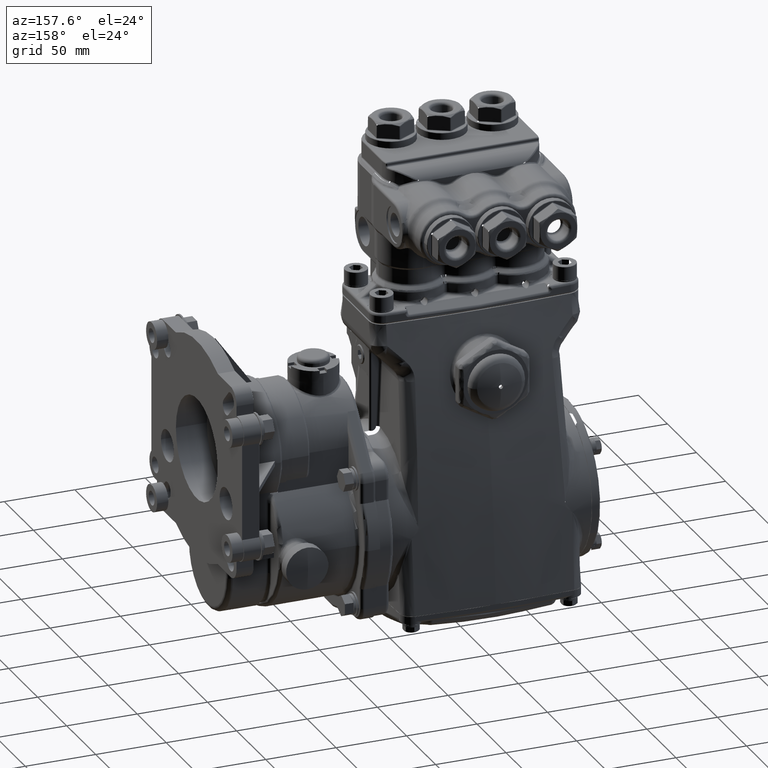
[diagram: clean part render]
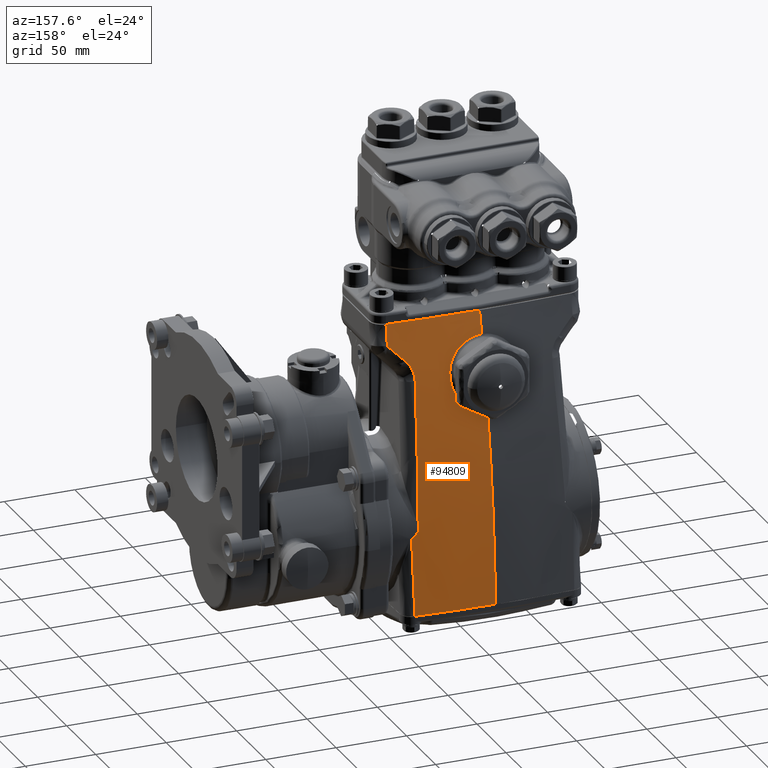
[diagram: same view with one face highlighted and labeled with its STEP entity id]
A machine part, auxiliary view. The second image highlights one B-rep face of the part: STEP entity #94809.
In plain terms, the highlighted face is a freeform B-spline surface patch.
Its self-contained STEP definition (entity closure, byte-faithful):
#322 = CARTESIAN_POINT ( 'NONE',  ( 1.464488406949919552, 1.274012937168632842, 5.708661417322844933 ) ) ;
#412 = CARTESIAN_POINT ( 'NONE',  ( 1.913792689305000794, 1.578652126433170100, 4.124995731966824231 ) ) ;
#863 = ORIENTED_EDGE ( 'NONE', *, *, #111050, .T. ) ;
#933 = CARTESIAN_POINT ( 'NONE',  ( 2.913385826771653697, 2.265344068576853775, -2.165354330708661568 ) ) ;
#1340 = CARTESIAN_POINT ( 'NONE',  ( 2.578671170726355211, 1.335102641929536871, 5.127045243281220799 ) ) ;
#1550 = CARTESIAN_POINT ( 'NONE',  ( 2.832087334218518215, 1.704813401921131399, 3.127925920230778090 ) ) ;
#1611 = CARTESIAN_POINT ( 'NONE',  ( 0.9599596636209281053, 1.609408501972310557, 4.246538372213343848 ) ) ;
#2029 = EDGE_CURVE ( 'NONE', #50532, #35107, #77301, .T. ) ;
#2163 = CARTESIAN_POINT ( 'NONE',  ( 2.913385809642305091, 1.691985680221154587, 3.127925920230778090 ) ) ;
#2215 = CARTESIAN_POINT ( 'NONE',  ( 0.9064667844229425953, 1.701914183292754457, 3.782771815187817133 ) ) ;
#2455 = B_SPLINE_CURVE_WITH_KNOTS ( 'NONE', 3,
 ( #120571, #9150, #6741, #44455, #45066, #121175, #73543, #102606, #82258, #64257, #36400, #121788, #37011, #54334 ),
 .UNSPECIFIED., .F., .F.,
 ( 4, 2, 2, 2, 2, 2, 4 ),
 ( 0.000000000000000000, 0.002006917460411369609, 0.004013834920822739218, 0.008027669841645473231, 0.01003458730205684241, 0.01204150476246821158, 0.01605533968329095340 ),
 .UNSPECIFIED. ) ;
#2597 = CARTESIAN_POINT ( 'NONE',  ( -3.553331779381568324E-16, 2.401107312964255058, -2.153091527327260835 ) ) ;
#2777 = CARTESIAN_POINT ( 'NONE',  ( -0.4944103712627415104, 1.296520347643933091, 5.708661417322852039 ) ) ;
#2831 = CARTESIAN_POINT ( 'NONE',  ( 0.9674257110944358695, 1.631065580829811790, 4.136350087504880868 ) ) ;
#2890 = CARTESIAN_POINT ( 'NONE',  ( -7.629761195857950561E-17, 1.982659120498347916, 2.275230264263858437 ) ) ;
#3082 = CARTESIAN_POINT ( 'NONE',  ( 2.044355463987427957, 2.128279285250508579, 0.2680828113186349282 ) ) ;
#3389 = CARTESIAN_POINT ( 'NONE',  ( -0.7927816049644650365, 1.913850617605289184, 3.127925920230762991 ) ) ;
#3448 = CARTESIAN_POINT ( 'NONE',  ( 0.7319415609452402105, 1.510511002020255455, 4.756252534259798104 ) ) ;
#3991 = CARTESIAN_POINT ( 'NONE',  ( -2.913385826771654141, 2.265344068576858216, -2.165354330708661568 ) ) ;
#4600 = CARTESIAN_POINT ( 'NONE',  ( -2.369125755900576280, 1.232386614232151567, 5.708661417322828946 ) ) ;
#4714 = CARTESIAN_POINT ( 'NONE',  ( 2.141518609228190151, 2.142761626880099968, 0.03843709217641189113 ) ) ;
#5770 = B_SPLINE_CURVE_WITH_KNOTS ( 'NONE', 3,
 ( #89769, #60041, #81131, #22942 ),
 .UNSPECIFIED., .F., .F.,
 ( 4, 4 ),
 ( 0.05720529367331355503, 0.5000000000000000000 ),
 .UNSPECIFIED. ) ;
#6497 = CARTESIAN_POINT ( 'NONE',  ( 0.06446866798773855101, 1.445856567849097329, 5.088089217278126242 ) ) ;
#6526 = B_SPLINE_CURVE_WITH_KNOTS ( 'NONE', 3,
 ( #114601, #49581, #56431, #87362, #65736, #2597 ),
 .UNSPECIFIED., .F., .F.,
 ( 4, 2, 4 ),
 ( 2.221529986854170653E-16, 0.02830497638067615285, 0.05660995276135206977 ),
 .UNSPECIFIED. ) ;
#6741 = CARTESIAN_POINT ( 'NONE',  ( 2.096129776760800034, 1.465843969454385665, 4.644982890269670150 ) ) ;
#7107 = CARTESIAN_POINT ( 'NONE',  ( 4.913136071072523174E-16, 1.836057301759951743, 3.153322082173252383 ) ) ;
#7356 = CARTESIAN_POINT ( 'NONE',  ( 1.694981807724714296, 1.848142482010741716, 3.127925920230768320 ) ) ;
#7824 = VERTEX_POINT ( 'NONE', #120500 ) ;
#8536 = CARTESIAN_POINT ( 'NONE',  ( 2.239546380805879977, 2.213566551445497410, -0.7448622437288106024 ) ) ;
#9150 = CARTESIAN_POINT ( 'NONE',  ( 2.113476934372326976, 1.460827687103822159, 4.664159022983963787 ) ) ;
#9591 = CARTESIAN_POINT ( 'NONE',  ( 1.345329668388619115, 2.372960332906649317, -2.165354330708661568 ) ) ;
#10184 = CARTESIAN_POINT ( 'NONE',  ( -0.1019934165441797186, 2.300768595909193692, 0.4897784465330312087 ) ) ;
#10244 = CARTESIAN_POINT ( 'NONE',  ( 0.5160278655444363594, 1.474502422586199124, 4.941722194200434792 ) ) ;
#10798 = CARTESIAN_POINT ( 'NONE',  ( 1.091501189288772045, 2.263308735351807321, 0.4897784465330322634 ) ) ;
#10863 = CARTESIAN_POINT ( 'NONE',  ( 0.06459929520378436540, 1.836057302116698597, 3.153322082174858654 ) ) ;
#11414 = CARTESIAN_POINT ( 'NONE',  ( 1.943646624093668951, 1.254362676313996783, 5.708661417322836940 ) ) ;
#11471 = CARTESIAN_POINT ( 'NONE',  ( 0.3149968055351913820, 1.824372806192153140, 3.205623488492979067 ) ) ;
#12017 = CARTESIAN_POINT ( 'NONE',  ( -1.566192897389171446, 1.270407001257443991, 5.708661417322867138 ) ) ;
#12070 = CARTESIAN_POINT ( 'NONE',  ( 0.8416776436527466654, 1.731100539559013995, 3.640799853198356306 ) ) ;
#12218 = CARTESIAN_POINT ( 'NONE',  ( 2.032358843832673845, 2.056376370780970575, 0.9443930657390869898 ) ) ;
#12341 = CARTESIAN_POINT ( 'NONE',  ( 2.580420361868525525, 1.219814423293576366, 5.708661417322829834 ) ) ;
#12633 = CARTESIAN_POINT ( 'NONE',  ( -0.2418360551790639246, 1.930064199602339103, 3.127925920230777201 ) ) ;
#12688 = CARTESIAN_POINT ( 'NONE',  ( 0.9348349137624545335, 1.683629070884896439, 3.872875714643418732 ) ) ;
#12746 = CARTESIAN_POINT ( 'NONE',  ( -9.459155955198532228E-16, 2.302870744067759379, -0.3757870823018082396 ) ) ;
#13186 = VERTEX_POINT ( 'NONE', #24187 ) ;
#13254 = CARTESIAN_POINT ( 'NONE',  ( -2.441314665332591005, 2.306279735125305486, -2.165354330708661568 ) ) ;
#13862 = CARTESIAN_POINT ( 'NONE',  ( -1.915486056463422626, 2.186527716124472054, 0.4897784465330268233 ) ) ;
#14475 = CARTESIAN_POINT ( 'NONE',  ( -2.283695148368128258, 2.140796000541696831, 0.4897784465330257131 ) ) ;
#15150 = CARTESIAN_POINT ( 'NONE',  ( 0.04032141249026682805, 1.445619475605324666, 5.089296836793729462 ) ) ;
#16630 = CARTESIAN_POINT ( 'NONE',  ( 0.4014957656440674150, 1.927885586440226895, 3.127925920230758550 ) ) ;
#18525 = CARTESIAN_POINT ( 'NONE',  ( 2.050696319507217424, 2.124840656513260484, 0.2941673272930121485 ) ) ;
#18893 = CARTESIAN_POINT ( 'NONE',  ( 1.989399371181384657, 2.338284998638617829, -2.165354330708661568 ) ) ;
#19126 = CARTESIAN_POINT ( 'NONE',  ( 2.053194142686559864, 2.123507996596452063, 0.3041950259637326570 ) ) ;
#19497 = CARTESIAN_POINT ( 'NONE',  ( 0.1450234440065842623, 2.300768595909193692, 0.4897784465330312087 ) ) ;
#20101 = CARTESIAN_POINT ( 'NONE',  ( 2.324091733874594556, 1.235065584125860205, 5.708661417322837828 ) ) ;
#20160 = CARTESIAN_POINT ( 'NONE',  ( 0.4326564059834072107, 1.465345589794402992, 4.988646893029093476 ) ) ;
#20717 = CARTESIAN_POINT ( 'NONE',  ( 2.822533585408712575, 2.063108027997046179, 0.4897784465330322634 ) ) ;
#20772 = CARTESIAN_POINT ( 'NONE',  ( 0.1605620357445411150, 1.447988655397608904, 5.077233423560211456 ) ) ;
#21320 = CARTESIAN_POINT ( 'NONE',  ( -0.4873200862093256536, 1.924545779200155238, 3.127925920230781642 ) ) ;
#21333 = EDGE_CURVE ( 'NONE', #41950, #33433, #65737, .T. ) ;
#21376 = CARTESIAN_POINT ( 'NONE',  ( 0.6887007126048577677, 1.773395714737923345, 3.439881183082051042 ) ) ;
#21924 = CARTESIAN_POINT ( 'NONE',  ( -2.476352911878936691, 2.114609130722263863, 0.4897784465330257131 ) ) ;
#21977 = CARTESIAN_POINT ( 'NONE',  ( 0.9672713820068505886, 1.646538536074291237, 4.058006522140317429 ) ) ;
#22360 = CARTESIAN_POINT ( 'NONE',  ( 2.580420361868525525, 1.219814423293576366, 5.708661417322829834 ) ) ;
#22530 = CARTESIAN_POINT ( 'NONE',  ( -0.7760523888099779555, 2.282663781206291986, 0.4897784465330268233 ) ) ;
#22942 = CARTESIAN_POINT ( 'NONE',  ( 3.450959980213676461E-17, 1.299212598425197429, 5.708661417322835163 ) ) ;
#23137 = CARTESIAN_POINT ( 'NONE',  ( -1.742463560137298861, 1.843263351871661682, 3.127925920230766099 ) ) ;
#23750 = CARTESIAN_POINT ( 'NONE',  ( -2.862114397419967649, 1.201536995417321174, 5.708661417322835163 ) ) ;
#23861 = CARTESIAN_POINT ( 'NONE',  ( 2.244154975526539531, 2.140548279587432656, -0.04263853052005076028 ) ) ;
#24187 = CARTESIAN_POINT ( 'NONE',  ( -3.553331779381568324E-16, 2.401107312964255058, -2.153091527327260835 ) ) ;
#25691 = EDGE_CURVE ( 'NONE', #122255, #7824, #5770, .T. ) ;
#25872 = CARTESIAN_POINT ( 'NONE',  ( 1.424768798695146943, 1.872199753906897080, 3.127925920230782530 ) ) ;
#26296 = CARTESIAN_POINT ( 'NONE',  ( 2.043608718765491439, 2.136991848240977987, 0.1870679647836691606 ) ) ;
#28046 = EDGE_CURVE ( 'NONE', #80290, #62880, #82177, .T. ) ;
#28146 = CARTESIAN_POINT ( 'NONE',  ( 4.460639497433702925E-07, 1.299212598425199872, 5.708661417322837828 ) ) ;
#28731 = ORIENTED_EDGE ( 'NONE', *, *, #25691, .F. ) ;
#28767 = CARTESIAN_POINT ( 'NONE',  ( 1.062078202322146669, 2.384053432892066837, -2.165354330708661568 ) ) ;
#29368 = CARTESIAN_POINT ( 'NONE',  ( 0.7686644455069947535, 2.282642455870151466, 0.4897784465330279335 ) ) ;
#29425 = CARTESIAN_POINT ( 'NONE',  ( 0.8703003494871583978, 1.551087081194280737, 4.546494005402069050 ) ) ;
#29840 = EDGE_CURVE ( 'NONE', #62880, #13186, #6526, .T. ) ;
#29969 = CARTESIAN_POINT ( 'NONE',  ( 0.8019535934125048282, 1.292120820694525829, 5.708661417322820952 ) ) ;
#30026 = CARTESIAN_POINT ( 'NONE',  ( 0.8248358664637551740, 1.535056502061034278, 4.629367722570785659 ) ) ;
#30639 = CARTESIAN_POINT ( 'NONE',  ( 0.08054166425364044091, 1.446093476583459880, 5.086882738810285964 ) ) ;
#31182 = CARTESIAN_POINT ( 'NONE',  ( -2.240980235268052567, 2.321187910974375601, -2.165354330708661568 ) ) ;
#31778 = CARTESIAN_POINT ( 'NONE',  ( -2.841633460699813707, 2.272069094341538253, -2.165354330708661568 ) ) ;
#31834 = CARTESIAN_POINT ( 'NONE',  ( 0.3449787976630937503, 1.821950353961406366, 3.216540131001420111 ) ) ;
#32225 = CARTESIAN_POINT ( 'NONE',  ( 2.586362804630043755, 1.329823753665074770, 5.151270064738946886 ) ) ;
#32396 = CARTESIAN_POINT ( 'NONE',  ( -2.913385628152182161, 2.048762232609131040, 0.4897784465330273784 ) ) ;
#32440 = ORIENTED_EDGE ( 'NONE', *, *, #112782, .T. ) ;
#33014 = CARTESIAN_POINT ( 'NONE',  ( -1.192739666030848023, 1.282981708238517982, 5.708661417322778320 ) ) ;
#33123 = CARTESIAN_POINT ( 'NONE',  ( 2.053717711146651581, 2.139269078108408273, 0.1560372837815818814 ) ) ;
#33433 = VERTEX_POINT ( 'NONE', #77148 ) ;
#33459 = CARTESIAN_POINT ( 'NONE',  ( -1.384850827037492099E-08, 1.349635227852899577, 5.502833657239617260 ) ) ;
#33742 = CARTESIAN_POINT ( 'NONE',  ( 2.190893994370609388, 2.142160377084879386, -0.004468358595172817679 ) ) ;
#34077 = CARTESIAN_POINT ( 'NONE',  ( 2.584535606851970257, 1.294080410689277816, 5.337251396087705935 ) ) ;
#34364 = CARTESIAN_POINT ( 'NONE',  ( 2.086663981160560066, 2.141946370163338997, 0.09931180522621346762 ) ) ;
#35107 = VERTEX_POINT ( 'NONE', #82582 ) ;
#35783 = CARTESIAN_POINT ( 'NONE',  ( 0.1449928827331220804, 1.931427949591510762, 3.127925920230771872 ) ) ;
#36400 = CARTESIAN_POINT ( 'NONE',  ( 1.927611122228684026, 1.544016712790778012, 4.303500443620480453 ) ) ;
#37011 = CARTESIAN_POINT ( 'NONE',  ( 1.911712936028525656, 1.569139206086894722, 4.176878153945166261 ) ) ;
#38058 = CARTESIAN_POINT ( 'NONE',  ( 1.648668314213691533, 2.215500870424783830, 0.4897784465330284331 ) ) ;
#38672 = CARTESIAN_POINT ( 'NONE',  ( 2.414281635307358176, 2.308400903803341286, -2.165354330708661568 ) ) ;
#38730 = CARTESIAN_POINT ( 'NONE',  ( 0.6422591814072780014, 1.782550782372619880, 3.397208525460233997 ) ) ;
#39264 = CARTESIAN_POINT ( 'NONE',  ( 2.663295530942336509, 2.288034568519320633, -2.165354330708661568 ) ) ;
#39287 = CARTESIAN_POINT ( 'NONE',  ( -1.274984242628392523E-15, 1.445461229294053629, 5.090103064882366191 ) ) ;
#39325 = CARTESIAN_POINT ( 'NONE',  ( 0.9195789750301700538, 1.573690374301592643, 4.429810660793449095 ) ) ;
#39932 = CARTESIAN_POINT ( 'NONE',  ( 0.4328265377979011452, 1.813782680613042153, 3.253492456797081989 ) ) ;
#40280 = CARTESIAN_POINT ( 'NONE',  ( 2.581547405182520460, 1.334037875565112996, 5.131388924344277847 ) ) ;
#40498 = CARTESIAN_POINT ( 'NONE',  ( -1.161614335099249162, 1.892574789840504090, 3.127925920230731460 ) ) ;
#40553 = CARTESIAN_POINT ( 'NONE',  ( 0.9554301720631647177, 1.603327808052289916, 4.277628539086538950 ) ) ;
#41088 = CARTESIAN_POINT ( 'NONE',  ( -2.686370785910835668, 2.084068835673689168, 0.4897784465330284331 ) ) ;
#41146 = CARTESIAN_POINT ( 'NONE',  ( 0.7107172724088213212, 1.505913706992816570, 4.779993862681470418 ) ) ;
#41204 = CARTESIAN_POINT ( 'NONE',  ( 4.913136071072523174E-16, 1.836057301759951743, 3.153322082173252383 ) ) ;
#41289 = CARTESIAN_POINT ( 'NONE',  ( 1.939169078520298184, 1.694725303002851957, 3.491945384865736912 ) ) ;
#41482 = CARTESIAN_POINT ( 'NONE',  ( 2.586362804630043755, 1.329823753665074770, 5.151270064738946886 ) ) ;
#41693 = CARTESIAN_POINT ( 'NONE',  ( -0.4802293617885408095, 2.293642939336617115, 0.4897784465330360937 ) ) ;
#41950 = VERTEX_POINT ( 'NONE', #412 ) ;
#42300 = CARTESIAN_POINT ( 'NONE',  ( -2.913385826771653697, 1.197969208711458622, 5.708661417322836940 ) ) ;
#44003 = VERTEX_POINT ( 'NONE', #56384 ) ;
#44455 = CARTESIAN_POINT ( 'NONE',  ( 2.063488888649752884, 1.476050141854796438, 4.604872648964010828 ) ) ;
#45063 = CARTESIAN_POINT ( 'NONE',  ( 2.841641326625984565, 1.202961639721772835, 5.708661417322836940 ) ) ;
#45066 = CARTESIAN_POINT ( 'NONE',  ( 2.048227176215684064, 1.481234032319028504, 4.583956750178723283 ) ) ;
#45942 = CARTESIAN_POINT ( 'NONE',  ( 2.574974328991057604, 1.336104400314134022, 5.123366273300666407 ) ) ;
#47315 = CARTESIAN_POINT ( 'NONE',  ( 2.706392384829025666, 1.723957603235178659, 3.127925920230774093 ) ) ;
#47981 = CARTESIAN_POINT ( 'NONE',  ( 0.2533926817482556326, 1.828505556673673649, 3.187054628844160131 ) ) ;
#48165 = CARTESIAN_POINT ( 'NONE',  ( 2.044355463987427957, 2.128279285250508579, 0.2680828113186349282 ) ) ;
#48544 = CARTESIAN_POINT ( 'NONE',  ( 0.7520193225572913143, 2.393118508680718737, -2.165354330708661568 ) ) ;
#48605 = CARTESIAN_POINT ( 'NONE',  ( 0.8708494686695564813, 1.719662461424737776, 3.696078290583389325 ) ) ;
#49147 = CARTESIAN_POINT ( 'NONE',  ( 2.189576524486965603, 2.325080261920541513, -2.165354330708661568 ) ) ;
#49201 = CARTESIAN_POINT ( 'NONE',  ( 0.1286849885896270695, 1.447041223724454317, 5.082056845242140852 ) ) ;
#49581 = CARTESIAN_POINT ( 'NONE',  ( 1.856596089375251113, 2.347836400576193139, -2.152851640792331267 ) ) ;
#49745 = CARTESIAN_POINT ( 'NONE',  ( -0.1019499836553652977, 1.299212598425203424, 5.708661417322837828 ) ) ;
#49802 = CARTESIAN_POINT ( 'NONE',  ( 0.9458950846975648918, 1.674355009619318047, 3.918891003596449263 ) ) ;
#50361 = CARTESIAN_POINT ( 'NONE',  ( -2.664582750533174949, 2.288033759751162410, -2.165354330708661568 ) ) ;
#50418 = CARTESIAN_POINT ( 'NONE',  ( 0.9644831214159413912, 1.618667759299428965, 4.199342229287558403 ) ) ;
#50532 = VERTEX_POINT ( 'NONE', #66638 ) ;
#50559 = CARTESIAN_POINT ( 'NONE',  ( 1.963626619177751165, 1.797341108968452561, 2.856902942451461147 ) ) ;
#50681 = EDGE_CURVE ( 'NONE', #94563, #80290, #62848, .T. ) ;
#50968 = CARTESIAN_POINT ( 'NONE',  ( -1.130488594888032106, 2.260970933480409784, 0.4897784465330104475 ) ) ;
#51572 = CARTESIAN_POINT ( 'NONE',  ( -1.523571933390364785, 1.864023738764600591, 3.127925920230789192 ) ) ;
#51630 = CARTESIAN_POINT ( 'NONE',  ( -1.274984242628392523E-15, 1.445461229294053629, 5.090103064882366191 ) ) ;
#51874 = ORIENTED_EDGE ( 'NONE', *, *, #87277, .T. ) ;
#52159 = B_SPLINE_CURVE_WITH_KNOTS ( 'NONE', 3,
 ( #19126, #67983, #122452, #58656, #103275, #18525, #57424, #84743, #66154, #48165 ),
 .UNSPECIFIED., .F., .F.,
 ( 4, 3, 3, 4 ),
 ( -5.562569102119109104E-05, 0.000000000000000000, 0.0003135512665637998626, 0.0008964518825718768413 ),
 .UNSPECIFIED. ) ;
#52186 = CARTESIAN_POINT ( 'NONE',  ( -2.326410604817633843, 1.776570720899578237, 3.127925920230762991 ) ) ;
#54330 = CARTESIAN_POINT ( 'NONE',  ( 0.4056649939589584419, 1.297898323476693649, 5.708661417322814735 ) ) ;
#54334 = CARTESIAN_POINT ( 'NONE',  ( 1.913792689305000794, 1.578652126433170100, 4.124995731966824231 ) ) ;
#55214 = CARTESIAN_POINT ( 'NONE',  ( 2.279618857958573219, 1.416278901517128430, 4.829451229673167312 ) ) ;
#56202 = VERTEX_POINT ( 'NONE', #7107 ) ;
#56384 = CARTESIAN_POINT ( 'NONE',  ( 2.586362804630043755, 1.329823753665074770, 5.151270064738946886 ) ) ;
#56431 = CARTESIAN_POINT ( 'NONE',  ( 1.485659127593187856, 2.367827536078679795, -2.152937399985699773 ) ) ;
#56601 = CARTESIAN_POINT ( 'NONE',  ( 2.132997294791504572, 1.245100427256950137, 5.708661417322847598 ) ) ;
#56890 = B_SPLINE_SURFACE_WITH_KNOTS ( 'NONE', 3, 3, ( 
 ( #933, #86924, #2163, #105481 ),
 ( #94363, #20717, #1550, #45063 ),
 ( #39264, #114159, #47315, #67752 ),
 ( #38672, #95575, #58418, #66530 ),
 ( #49147, #82862, #76424, #20101 ),
 ( #18893, #77028, #110664, #56601 ),
 ( #75820, #96191, #104868, #11414 ),
 ( #114772, #38058, #7356, #72934 ),
 ( #9591, #113556, #25872, #322 ),
 ( #28767, #10798, #120569, #104249 ),
 ( #48544, #29368, #67132, #29969 ),
 ( #63630, #101382, #16630, #54330 ),
 ( #92129, #19497, #35783, #73538 ),
 ( #57199, #65910, #111267, #28146 ),
 ( #103645, #10184, #85698, #49745 ),
 ( #99236, #116580, #12633, #59028 ),
 ( #88160, #41693, #21320, #2777 ),
 ( #115985, #22530, #3389, #96796 ),
 ( #68960, #50968, #40498, #33014 ),
 ( #87543, #60249, #51572, #12017 ),
 ( #60860, #98026, #23137, #117194 ),
 ( #108514, #13862, #89358, #61463 ),
 ( #106686, #107906, #79491, #78277 ),
 ( #31182, #14475, #52186, #4600 ),
 ( #13254, #21924, #59633, #97412 ),
 ( #50361, #41088, #88757, #78882 ),
 ( #31778, #69560, #107292, #23750 ),
 ( #3991, #32396, #98633, #42300 ) ),
 .UNSPECIFIED., .F., .F., .F.,
 ( 4, 1, 1, 1, 1, 1, 1, 1, 1, 1, 1, 3, 1, 1, 1, 1, 1, 1, 1, 1, 1, 1, 1, 4 ),
 ( 4, 4 ),
 ( 0.6820721574386665598, 0.6959246563835279620, 0.7035427212275893183, 0.7193976784518302248, 0.7310405802590583813, 0.7359332488469740863, 0.7508238822397268475, 0.7638475608825302521, 0.7796596398469348710, 0.7995163485322880348, 0.8173264764016470174, 0.8410360787193331689, 0.8577107850873244566, 0.8637457220820379256, 0.8805901526646464639, 0.9065920388027239873, 0.9224714650153007511, 0.9387315542144891722, 0.9421836685404010314, 0.9588536976265762402, 0.9664841599499356395, 0.9748837514135768600, 0.9901004416486960391, 1.000000000000000000 ),
 ( 0.000000000000000000, 1.000000000000000000 ),
 .UNSPECIFIED. ) ;
#57199 = CARTESIAN_POINT ( 'NONE',  ( -7.936972221735040067E-07, 2.401574803149599369, -2.165354330708661568 ) ) ;
#57257 = CARTESIAN_POINT ( 'NONE',  ( 0.6433779996093790254, 1.492703628457151543, 4.848150405952389441 ) ) ;
#57424 = CARTESIAN_POINT ( 'NONE',  ( 2.049718606573461166, 2.125365367588376575, 0.2902049147125475015 ) ) ;
#57862 = CARTESIAN_POINT ( 'NONE',  ( 0.5548157912006927983, 1.797392117569904579, 3.328526122958148203 ) ) ;
#58385 = ORIENTED_EDGE ( 'NONE', *, *, #2029, .T. ) ;
#58418 = CARTESIAN_POINT ( 'NONE',  ( 2.487087237515690497, 1.755350102494653619, 3.127925920230767431 ) ) ;
#58481 = CARTESIAN_POINT ( 'NONE',  ( 0.2066455304282950045, 1.831067194595412451, 3.175578635901488589 ) ) ;
#58656 = CARTESIAN_POINT ( 'NONE',  ( 2.052668002272747927, 2.123788338986134505, 0.3020877454172159471 ) ) ;
#59028 = CARTESIAN_POINT ( 'NONE',  ( -0.2434275427088355148, 1.298707510032789170, 5.708661417322846710 ) ) ;
#59083 = CARTESIAN_POINT ( 'NONE',  ( 0.9306256475736158773, 1.686722155919021970, 3.857577703846204020 ) ) ;
#59633 = CARTESIAN_POINT ( 'NONE',  ( -2.511391663655022644, 1.752002329188374841, 3.127925920230763879 ) ) ;
#59691 = CARTESIAN_POINT ( 'NONE',  ( 0.5678631274822998343, 1.795369591084004179, 3.337844157325742689 ) ) ;
#59751 = CARTESIAN_POINT ( 'NONE',  ( -4.466146051079346438E-16, 1.913088131938618153, 2.714857836103527600 ) ) ;
#60041 = CARTESIAN_POINT ( 'NONE',  ( 1.721199833086535458, 1.272744808180553022, 5.708661417322835163 ) ) ;
#60249 = CARTESIAN_POINT ( 'NONE',  ( -1.480950586178896522, 2.231805334558643494, 0.4897784465330393688 ) ) ;
#60362 = CARTESIAN_POINT ( 'NONE',  ( -3.553331779381568324E-16, 2.401107312964255058, -2.153091527327260835 ) ) ;
#60860 = CARTESIAN_POINT ( 'NONE',  ( -1.648708095812247088, 2.358238290425401562, -2.165354330708661568 ) ) ;
#60970 = CARTESIAN_POINT ( 'NONE',  ( -9.400979228033020406E-16, 2.161540637553380773, 0.9516246190699118035 ) ) ;
#61463 = CARTESIAN_POINT ( 'NONE',  ( -2.012704400865588106, 1.251118121441604725, 5.708661417322830722 ) ) ;
#62130 = CARTESIAN_POINT ( 'NONE',  ( 2.227242516835840735, 2.321209563805544995, -2.152759186897168053 ) ) ;
#62848 = B_SPLINE_CURVE_WITH_KNOTS ( 'NONE', 3,
 ( #81451, #73348, #117919, #111077, #26296, #33123, #70898, #82065, #34364, #101811, #89474, #4714, #108624, #33742, #119779, #23861 ),
 .UNSPECIFIED., .F., .F.,
 ( 4, 2, 2, 2, 2, 2, 2, 4 ),
 ( 0.000000000000000000, 0.001262479239838071874, 0.002524958479676143747, 0.003787437719514216272, 0.005049916959352287495, 0.006312396199190359151, 0.007574875439028429941, 0.01009983391870457325 ),
 .UNSPECIFIED. ) ;
#62880 = VERTEX_POINT ( 'NONE', #62130 ) ;
#63630 = CARTESIAN_POINT ( 'NONE',  ( 0.3931574066697886560, 2.399831511276485863, -2.165354330708661568 ) ) ;
#64086 = ORIENTED_EDGE ( 'NONE', *, *, #21333, .T. ) ;
#64257 = CARTESIAN_POINT ( 'NONE',  ( 1.933107383546204483, 1.538854528032834734, 4.328488172486087748 ) ) ;
#64857 = CARTESIAN_POINT ( 'NONE',  ( 2.244154975526539531, 2.140548279587432656, -0.04263853052005076028 ) ) ;
#65737 = B_SPLINE_CURVE_WITH_KNOTS ( 'NONE', 3,
 ( #85290, #41289, #50559, #79078, #12218, #88345 ),
 .UNSPECIFIED., .F., .F.,
 ( 4, 2, 4 ),
 ( 0.000000000000000000, 0.04904723555558240800, 0.09809447111116481599 ),
 .UNSPECIFIED. ) ;
#65736 = CARTESIAN_POINT ( 'NONE',  ( 0.3716019788068586904, 2.401107303656055958, -2.153091527322793741 ) ) ;
#65910 = CARTESIAN_POINT ( 'NONE',  ( 1.163670133464663677E-17, 2.300768595909193692, 0.4897784465330312087 ) ) ;
#66154 = CARTESIAN_POINT ( 'NONE',  ( 2.046101504699350926, 2.127312986832227804, 0.2754674812947199292 ) ) ;
#66530 = CARTESIAN_POINT ( 'NONE',  ( 2.523490070267365493, 1.223445930611731125, 5.708661417322820064 ) ) ;
#66638 = CARTESIAN_POINT ( 'NONE',  ( 2.574974328991057604, 1.336104400314134022, 5.123366273300666407 ) ) ;
#67028 = ORIENTED_EDGE ( 'NONE', *, *, #29840, .T. ) ;
#67132 = CARTESIAN_POINT ( 'NONE',  ( 0.7853088048963535739, 1.913828282296075267, 3.127925920230765211 ) ) ;
#67190 = CARTESIAN_POINT ( 'NONE',  ( 0.7716760308857149031, 1.520005616499535916, 4.707190689330426281 ) ) ;
#67752 = CARTESIAN_POINT ( 'NONE',  ( 2.727940840439588843, 1.210589729325569186, 5.708661417322829834 ) ) ;
#67806 = CARTESIAN_POINT ( 'NONE',  ( 0.2222672595200096968, 1.830271744323471506, 3.179138551028549919 ) ) ;
#67961 = EDGE_LOOP ( 'NONE', ( #79564, #67028, #51874, #79011, #32440, #28731, #71794, #863, #58385, #76065, #64086, #74551, #84124 ) ) ;
#67983 = CARTESIAN_POINT ( 'NONE',  ( 2.053018764334046509, 2.123601462032815412, 0.3034926010330931678 ) ) ;
#68418 = CARTESIAN_POINT ( 'NONE',  ( 0.7307716510373687413, 1.763420215501402266, 3.486847099895348912 ) ) ;
#68960 = CARTESIAN_POINT ( 'NONE',  ( -1.099363582922386673, 2.382977130700372648, -2.165354330708661568 ) ) ;
#69013 = CARTESIAN_POINT ( 'NONE',  ( 0.1282450143015186061, 1.834608345002695318, 3.159747366912883049 ) ) ;
#69560 = CARTESIAN_POINT ( 'NONE',  ( -2.848460234453425777, 2.059014184365152378, 0.4897784465330273784 ) ) ;
#69617 = CARTESIAN_POINT ( 'NONE',  ( 0.8837879089344029548, 1.556684492105498752, 4.517574585329223957 ) ) ;
#70898 = CARTESIAN_POINT ( 'NONE',  ( 2.060662642086689811, 2.140149228468939402, 0.1411380803277876572 ) ) ;
#71227 = CARTESIAN_POINT ( 'NONE',  ( 3.450959980213676461E-17, 1.299212598425197429, 5.708661417322835163 ) ) ;
#71794 = ORIENTED_EDGE ( 'NONE', *, *, #77509, .T. ) ;
#72078 = CARTESIAN_POINT ( 'NONE',  ( 0.007991942765933660389, 1.445461232022048570, 5.090103061987336197 ) ) ;
#72897 = B_SPLINE_CURVE_WITH_KNOTS ( 'NONE', 3,
 ( #22360, #81172, #34077, #32225 ),
 .UNSPECIFIED., .F., .F.,
 ( 4, 4 ),
 ( -5.999999999966940033E-08, 0.01443155766111012782 ),
 .UNSPECIFIED. ) ;
#72934 = CARTESIAN_POINT ( 'NONE',  ( 1.741295670112191551, 1.263397575016612429, 5.708661417322822729 ) ) ;
#73348 = CARTESIAN_POINT ( 'NONE',  ( 2.040573113143061779, 2.130372523749104019, 0.2520858116330775833 ) ) ;
#73538 = CARTESIAN_POINT ( 'NONE',  ( 0.1449627675236096203, 1.299212598425194765, 5.708661417322837828 ) ) ;
#73543 = CARTESIAN_POINT ( 'NONE',  ( 1.982876757387885824, 1.507254981816013029, 4.474301887717918369 ) ) ;
#74551 = ORIENTED_EDGE ( 'NONE', *, *, #83855, .T. ) ;
#75820 = CARTESIAN_POINT ( 'NONE',  ( 1.798349607840920461, 2.349958156103974627, -2.165354330708661568 ) ) ;
#76065 = ORIENTED_EDGE ( 'NONE', *, *, #89532, .T. ) ;
#76409 = B_SPLINE_CURVE_WITH_KNOTS ( 'NONE', 3,
 ( #41482, #86108, #97812, #40280, #1340, #78667 ),
 .UNSPECIFIED., .F., .F.,
 ( 4, 2, 4 ),
 ( 2.860979249076398407E-17, 0.0003987412940839050513, 0.0007974825881677814797 ),
 .UNSPECIFIED. ) ;
#76424 = CARTESIAN_POINT ( 'NONE',  ( 2.279253307875169998, 1.782954428840550332, 3.127925920230779422 ) ) ;
#76480 = CARTESIAN_POINT ( 'NONE',  ( 0.5933181033504504320, 1.791224152829905547, 3.356988519879164468 ) ) ;
#77028 = CARTESIAN_POINT ( 'NONE',  ( 2.037265628463433398, 2.172062645620683519, 0.4897784465330372039 ) ) ;
#77086 = CARTESIAN_POINT ( 'NONE',  ( 0.4886140263089442382, 1.807145071133906766, 3.283690386975755438 ) ) ;
#77148 = CARTESIAN_POINT ( 'NONE',  ( 2.053194142686559864, 2.123507996596452063, 0.3041950259637326570 ) ) ;
#77301 = B_SPLINE_CURVE_WITH_KNOTS ( 'NONE', 3,
 ( #45942, #83744, #55214, #103472 ),
 .UNSPECIFIED., .F., .F.,
 ( 4, 4 ),
 ( 0.000000000000000000, 0.01616665010958682341 ),
 .UNSPECIFIED. ) ;
#77509 = EDGE_CURVE ( 'NONE', #122255, #44003, #72897, .T. ) ;
#77712 = CARTESIAN_POINT ( 'NONE',  ( 0.9611287857313428606, 1.658899699653148430, 3.995873098052594941 ) ) ;
#78277 = CARTESIAN_POINT ( 'NONE',  ( -2.179242577519465929, 1.242815352902282511, 5.708661417322839604 ) ) ;
#78667 = CARTESIAN_POINT ( 'NONE',  ( 2.574974328991057604, 1.336104400314134022, 5.123366273300666407 ) ) ;
#78882 = CARTESIAN_POINT ( 'NONE',  ( -2.729947521028391666, 1.210496205736397046, 5.708661417322837828 ) ) ;
#78941 = CARTESIAN_POINT ( 'NONE',  ( 0.9656080779111771983, 1.621775079081216209, 4.183527801579443484 ) ) ;
#79011 = ORIENTED_EDGE ( 'NONE', *, *, #102691, .T. ) ;
#79078 = CARTESIAN_POINT ( 'NONE',  ( 2.010220420681155140, 1.978156669164420789, 1.583179683012722050 ) ) ;
#79491 = CARTESIAN_POINT ( 'NONE',  ( -2.131484495458442208, 1.801026039677056101, 3.127925920230771872 ) ) ;
#79564 = ORIENTED_EDGE ( 'NONE', *, *, #28046, .T. ) ;
#80166 = CARTESIAN_POINT ( 'NONE',  ( 0.03226603085782391717, 1.445560164890504318, 5.089598979694464731 ) ) ;
#80290 = VERTEX_POINT ( 'NONE', #85285 ) ;
#81131 = CARTESIAN_POINT ( 'NONE',  ( 0.8610481159279945729, 1.299212192107161989, 5.708661417322835163 ) ) ;
#81172 = CARTESIAN_POINT ( 'NONE',  ( 2.582554774261374142, 1.257421128485751272, 5.523052830132542113 ) ) ;
#81451 = CARTESIAN_POINT ( 'NONE',  ( 2.044355463987427957, 2.128279285250508579, 0.2680828113186349282 ) ) ;
#82065 = CARTESIAN_POINT ( 'NONE',  ( 2.077214970515641301, 2.141491778610240981, 0.1126631891245894329 ) ) ;
#82177 = B_SPLINE_CURVE_WITH_KNOTS ( 'NONE', 3,
 ( #64857, #8536, #112477, #102587 ),
 .UNSPECIFIED., .F., .F.,
 ( 4, 4 ),
 ( 0.001088878662660275332, 0.05488596565795428317 ),
 .UNSPECIFIED. ) ;
#82258 = CARTESIAN_POINT ( 'NONE',  ( 1.946748905238077532, 1.528379903095722137, 4.378080018571826493 ) ) ;
#82582 = CARTESIAN_POINT ( 'NONE',  ( 2.131860052545362816, 1.455898494205196236, 4.682448122466263740 ) ) ;
#82862 = CARTESIAN_POINT ( 'NONE',  ( 2.234415192802543526, 2.147607685230850105, 0.4897784465330339287 ) ) ;
#83744 = CARTESIAN_POINT ( 'NONE',  ( 2.427290454833202382, 1.376123305585299272, 4.976396351799645679 ) ) ;
#83855 = EDGE_CURVE ( 'NONE', #33433, #94563, #52159, .T. ) ;
#84124 = ORIENTED_EDGE ( 'NONE', *, *, #50681, .T. ) ;
#84743 = CARTESIAN_POINT ( 'NONE',  ( 2.047901024090821309, 2.126340813064907742, 0.2828387324246887102 ) ) ;
#85285 = CARTESIAN_POINT ( 'NONE',  ( 2.244154975526539531, 2.140548279587432656, -0.04263853052005076028 ) ) ;
#85290 = CARTESIAN_POINT ( 'NONE',  ( 1.913792689305000794, 1.578652126433170100, 4.124995731966824231 ) ) ;
#85698 = CARTESIAN_POINT ( 'NONE',  ( -0.1019719231317473690, 1.931427949591510762, 3.127925920230771872 ) ) ;
#85762 = CARTESIAN_POINT ( 'NONE',  ( 0.4888797921504502986, 1.471286706367559427, 4.958214325787495547 ) ) ;
#86108 = CARTESIAN_POINT ( 'NONE',  ( 2.586414031944188618, 1.330825853974931805, 5.146055892413254007 ) ) ;
#86318 = FACE_OUTER_BOUND ( 'NONE', #67961, .T. ) ;
#86924 = CARTESIAN_POINT ( 'NONE',  ( 2.913386025391125234, 2.048762232609160794, 0.4897784465330322634 ) ) ;
#86979 = CARTESIAN_POINT ( 'NONE',  ( 0.9670770789927320976, 1.627969835512180552, 4.152052922981180672 ) ) ;
#87041 = CARTESIAN_POINT ( 'NONE',  ( 3.593408354664775481E-16, 2.367043445073854002, -1.263200589613154179 ) ) ;
#87277 = EDGE_CURVE ( 'NONE', #13186, #56202, #110725, .T. ) ;
#87362 = CARTESIAN_POINT ( 'NONE',  ( 0.7432005799770020626, 2.394457355549476585, -2.153057796680048153 ) ) ;
#87543 = CARTESIAN_POINT ( 'NONE',  ( -1.438329920831150188, 2.368889522099582479, -2.165354330708661568 ) ) ;
#87599 = CARTESIAN_POINT ( 'NONE',  ( 0.6057620011881458266, 1.789096022879973935, 3.366838808613131562 ) ) ;
#88160 = CARTESIAN_POINT ( 'NONE',  ( -0.4731394191495172374, 2.398237061164405937, -2.165354330708661568 ) ) ;
#88216 = CARTESIAN_POINT ( 'NONE',  ( 0.9374267225573135187, 1.585341853739807627, 4.369806067430778818 ) ) ;
#88345 = CARTESIAN_POINT ( 'NONE',  ( 2.053194142686559864, 2.123507996596452063, 0.3041950259637326570 ) ) ;
#88757 = CARTESIAN_POINT ( 'NONE',  ( -2.708159283295305642, 1.723791484228667459, 3.127925920230769652 ) ) ;
#89358 = CARTESIAN_POINT ( 'NONE',  ( -1.964095400574084938, 1.820132787096657490, 3.127925920230765211 ) ) ;
#89474 = CARTESIAN_POINT ( 'NONE',  ( 2.118289369877800699, 2.142698611774983330, 0.06166686124301571509 ) ) ;
#89532 = EDGE_CURVE ( 'NONE', #35107, #41950, #2455, .T. ) ;
#89769 = CARTESIAN_POINT ( 'NONE',  ( 2.580420361868525525, 1.219814423293576366, 5.708661417322829834 ) ) ;
#90026 = CARTESIAN_POINT ( 'NONE',  ( 0.01614265106011296413, 1.445481042056540266, 5.090002092305161874 ) ) ;
#92129 = CARTESIAN_POINT ( 'NONE',  ( 0.1450532115828242763, 2.401574803149599369, -2.165354330708661568 ) ) ;
#94363 = CARTESIAN_POINT ( 'NONE',  ( 2.812979403157050307, 2.274754709963536570, -2.165354330708661568 ) ) ;
#94563 = VERTEX_POINT ( 'NONE', #3082 ) ;
#94809 = ADVANCED_FACE ( 'NONE', ( #86318 ), #56890, .T. ) ;
#95023 = CARTESIAN_POINT ( 'NONE',  ( 0.5946663609481593893, 1.484859650876335646, 4.888530248302497938 ) ) ;
#95575 = CARTESIAN_POINT ( 'NONE',  ( 2.450684691601683340, 2.118214908375344319, 0.4897784465330273784 ) ) ;
#95632 = CARTESIAN_POINT ( 'NONE',  ( 0.2544585553639734377, 1.451715161675747989, 5.058253401313942632 ) ) ;
#95920 = VERTEX_POINT ( 'NONE', #39287 ) ;
#96191 = CARTESIAN_POINT ( 'NONE',  ( 1.846782245487677443, 2.194251839819490346, 0.4897784465330333736 ) ) ;
#96246 = CARTESIAN_POINT ( 'NONE',  ( 4.913136071072523174E-16, 1.836057301759951743, 3.153322082173252383 ) ) ;
#96796 = CARTESIAN_POINT ( 'NONE',  ( -0.8095103919857050689, 1.292140362101252382, 5.708661417322824505 ) ) ;
#96851 = CARTESIAN_POINT ( 'NONE',  ( 0.9424672581809910854, 1.677446185038370174, 3.903529103138576595 ) ) ;
#97412 = CARTESIAN_POINT ( 'NONE',  ( -2.546430131488103932, 1.222062046991425621, 5.708661417322830722 ) ) ;
#97469 = CARTESIAN_POINT ( 'NONE',  ( 0.9169727454114506848, 1.695898520020460376, 3.812303417004025530 ) ) ;
#97812 = CARTESIAN_POINT ( 'NONE',  ( 2.585440017282558234, 1.331886858991679468, 5.140951107667772746 ) ) ;
#98026 = CARTESIAN_POINT ( 'NONE',  ( -1.695585503688044504, 2.210467917730762899, 0.4897784465330279335 ) ) ;
#98633 = CARTESIAN_POINT ( 'NONE',  ( -2.913385843901003192, 1.691985680221068877, 3.127925920230767431 ) ) ;
#99236 = CARTESIAN_POINT ( 'NONE',  ( -0.2386529819870307489, 2.400899943846330320, -2.165354330708661568 ) ) ;
#100309 = CARTESIAN_POINT ( 'NONE',  ( -1.274984242628392523E-15, 1.445461229294053629, 5.090103064882366191 ) ) ;
#101382 = CARTESIAN_POINT ( 'NONE',  ( 0.3973269798802252506, 2.297068369690827616, 0.4897784465330241033 ) ) ;
#101582 = B_SPLINE_CURVE_WITH_KNOTS ( 'NONE', 3,
 ( #96246, #10863, #69013, #58481, #67806, #47981, #116040, #11471, #31834, #39932, #77086, #57862, #59691, #76480, #87599, #38730, #21376, #68418, #114222, #106738, #12070, #48605, #2215, #97469, #59083, #12688, #96851, #49802, #77712, #21977, #2831, #86979, #78941, #50418, #1611, #40553, #88216, #39325, #69617, #29425, #104923, #30026, #114826, #67190, #3448, #41146, #57257, #95023, #10244, #85762, #20160, #115429, #105533, #95632, #20772, #49201, #30639, #6497, #15150, #80166, #90026, #72078, #51630 ),
 .UNSPECIFIED., .F., .F.,
 ( 4, 2, 2, 2, 2, 2, 2, 2, 1, 2, 2, 2, 2, 2, 2, 2, 2, 2, 2, 2, 2, 2, 2, 2, 2, 2, 2, 2, 2, 2, 2, 4 ),
 ( 4.015448966270820826E-18, 0.004871676645388389564, 0.006089595806735485437, 0.007307514968082582177, 0.009743353290776760045, 0.01461502993616510190, 0.01583294909751218824, 0.01705086825885927804, 0.01948670658155345764, 0.02192254490424763377, 0.02435838322694181685, 0.02923005987233017258, 0.03166589819502432790, 0.03288381735637140729, 0.03410173651771849362, 0.03897341316310676956, 0.04019133232445382120, 0.04140925148580087284, 0.04384508980849501775, 0.04871676645388331450, 0.05115260477657746635, 0.05358844309927160432, 0.05602428142196575617, 0.05846011974465990801, 0.06333179639004818395, 0.06576763471274235662, 0.06820347303543652928, 0.07307514968082481910, 0.07551098800351897788, 0.07672890716486605034, 0.07733786674553959350, 0.07794682632621312279 ),
 .UNSPECIFIED. ) ;
#101811 = CARTESIAN_POINT ( 'NONE',  ( 2.107178115646284322, 2.142550459315985201, 0.07382979369070866160 ) ) ;
#102587 = CARTESIAN_POINT ( 'NONE',  ( 2.227242516835840735, 2.321209563805544995, -2.152759186897168053 ) ) ;
#102606 = CARTESIAN_POINT ( 'NONE',  ( 1.954921401464340791, 1.523061787492009600, 4.402702356222214064 ) ) ;
#102691 = EDGE_CURVE ( 'NONE', #56202, #95920, #101582, .T. ) ;
#103275 = CARTESIAN_POINT ( 'NONE',  ( 2.051680137896816802, 2.124314930510387889, 0.2981281011033464212 ) ) ;
#103472 = CARTESIAN_POINT ( 'NONE',  ( 2.131860052545362816, 1.455898494205196236, 4.682448122466263740 ) ) ;
#103645 = CARTESIAN_POINT ( 'NONE',  ( -0.1020157036538342776, 2.401574803149599813, -2.165354330708661568 ) ) ;
#104249 = CARTESIAN_POINT ( 'NONE',  ( 1.150346110494637530, 1.283976514928851342, 5.708661417322833387 ) ) ;
#104868 = CARTESIAN_POINT ( 'NONE',  ( 1.895214259565363601, 1.827571154474304294, 3.127925920230778090 ) ) ;
#104923 = CARTESIAN_POINT ( 'NONE',  ( 0.8408534539225608340, 1.540288871572165208, 4.602309156754099462 ) ) ;
#105481 = CARTESIAN_POINT ( 'NONE',  ( 2.913385826771655474, 1.197969208711458622, 5.708661417322835163 ) ) ;
#105533 = CARTESIAN_POINT ( 'NONE',  ( 0.3151986056433657146, 1.455377961310617918, 5.039591650425436775 ) ) ;
#106686 = CARTESIAN_POINT ( 'NONE',  ( -2.035968259211032638, 2.335433637454252143, -2.165354330708661568 ) ) ;
#106738 = CARTESIAN_POINT ( 'NONE',  ( 0.7895195932548945139, 1.747619812788680616, 3.561772888436792961 ) ) ;
#107292 = CARTESIAN_POINT ( 'NONE',  ( -2.855287436206074059, 1.701152819370444380, 3.127925920230767431 ) ) ;
#107906 = CARTESIAN_POINT ( 'NONE',  ( -2.083726086542775580, 2.166614530041778952, 0.4897784465330300985 ) ) ;
#108514 = CARTESIAN_POINT ( 'NONE',  ( -1.866877324122242721, 2.345940473350991429, -2.165354330708661568 ) ) ;
#108624 = CARTESIAN_POINT ( 'NONE',  ( 2.153604286739069895, 2.142677141121248408, 0.02739613417405057511 ) ) ;
#110664 = CARTESIAN_POINT ( 'NONE',  ( 2.085131295870260804, 1.806265684984544873, 3.127925920230786083 ) ) ;
#110725 = B_SPLINE_CURVE_WITH_KNOTS ( 'NONE', 3,
 ( #60362, #87041, #12746, #60970, #114883, #2890, #59751, #41204 ),
 .UNSPECIFIED., .F., .F.,
 ( 4, 2, 2, 4 ),
 ( 0.0003113998746300996462, 0.06810555726670124155, 0.1020026359627368012, 0.1358997146587723748 ),
 .UNSPECIFIED. ) ;
#111050 = EDGE_CURVE ( 'NONE', #44003, #50532, #76409, .T. ) ;
#111077 = CARTESIAN_POINT ( 'NONE',  ( 2.040459019290784770, 2.135564256478422962, 0.2034737644382935695 ) ) ;
#111267 = CARTESIAN_POINT ( 'NONE',  ( 2.319896085376018283E-17, 1.931427949591510762, 3.127925920230771872 ) ) ;
#112477 = CARTESIAN_POINT ( 'NONE',  ( 2.233845073485671406, 2.273746941961116264, -1.448359403269037671 ) ) ;
#112757 = B_SPLINE_CURVE_WITH_KNOTS ( 'NONE', 3,
 ( #100309, #117640, #33459, #71227 ),
 .UNSPECIFIED., .F., .F.,
 ( 4, 4 ),
 ( 0.1860543191475172720, 0.2021863343224881704 ),
 .UNSPECIFIED. ) ;
#112782 = EDGE_CURVE ( 'NONE', #95920, #7824, #112757, .T. ) ;
#113556 = CARTESIAN_POINT ( 'NONE',  ( 1.385049581091533977, 2.240167768303182871, 0.4897784465330360937 ) ) ;
#114159 = CARTESIAN_POINT ( 'NONE',  ( 2.684844189044222063, 2.084204787240034662, 0.4897784465330306536 ) ) ;
#114222 = CARTESIAN_POINT ( 'NONE',  ( 0.7706295694341120939, 1.753039094228238337, 3.535988971856116603 ) ) ;
#114601 = CARTESIAN_POINT ( 'NONE',  ( 2.227242516835840735, 2.321209563805544995, -2.152759186897168053 ) ) ;
#114772 = CARTESIAN_POINT ( 'NONE',  ( 1.602354164347862486, 2.360792373919399001, -2.165354330708661568 ) ) ;
#114826 = CARTESIAN_POINT ( 'NONE',  ( 0.7902471345203806452, 1.524914881969420044, 4.681808476390663110 ) ) ;
#114883 = CARTESIAN_POINT ( 'NONE',  ( -8.016133500422119341E-17, 2.106884914907209971, 1.393649014934724262 ) ) ;
#115429 = CARTESIAN_POINT ( 'NONE',  ( 0.4035240144287292052, 1.462619888851461658, 5.002588478119779580 ) ) ;
#115985 = CARTESIAN_POINT ( 'NONE',  ( -0.7593239362273205284, 2.393134938270125467, -2.165354330708661568 ) ) ;
#116040 = CARTESIAN_POINT ( 'NONE',  ( 0.2689366647110956743, 1.827531859230574041, 3.191424109076885340 ) ) ;
#116580 = CARTESIAN_POINT ( 'NONE',  ( -0.2402441229366546194, 2.299342540392106837, 0.4897784465330339287 ) ) ;
#117194 = CARTESIAN_POINT ( 'NONE',  ( -1.789341252083276768, 1.261249471572284842, 5.708661417322832499 ) ) ;
#117640 = CARTESIAN_POINT ( 'NONE',  ( 1.889681467910129429E-08, 1.398385728573260156, 5.296640703349395629 ) ) ;
#117919 = CARTESIAN_POINT ( 'NONE',  ( 2.038984479122260662, 2.132266257378622409, 0.2358320036178837287 ) ) ;
#119779 = CARTESIAN_POINT ( 'NONE',  ( 2.217111855764113404, 2.141468998871418616, -0.02405646177959936197 ) ) ;
#120500 = CARTESIAN_POINT ( 'NONE',  ( 3.450959980213676461E-17, 1.299212598425197429, 5.708661417322835163 ) ) ;
#120569 = CARTESIAN_POINT ( 'NONE',  ( 1.120923444174019235, 1.894876309026148453, 3.127925920230774093 ) ) ;
#120571 = CARTESIAN_POINT ( 'NONE',  ( 2.131860052545362816, 1.455898494205196236, 4.682448122466263740 ) ) ;
#121175 = CARTESIAN_POINT ( 'NONE',  ( 2.006197590821474197, 1.496792152695942901, 4.519617041527910217 ) ) ;
#121788 = CARTESIAN_POINT ( 'NONE',  ( 1.914997405245976836, 1.559272713065359195, 4.227973954623273301 ) ) ;
#122255 = VERTEX_POINT ( 'NONE', #12341 ) ;
#122452 = CARTESIAN_POINT ( 'NONE',  ( 2.052843254757449110, 2.123694918800838050, 0.3027902077404300840 ) ) ;